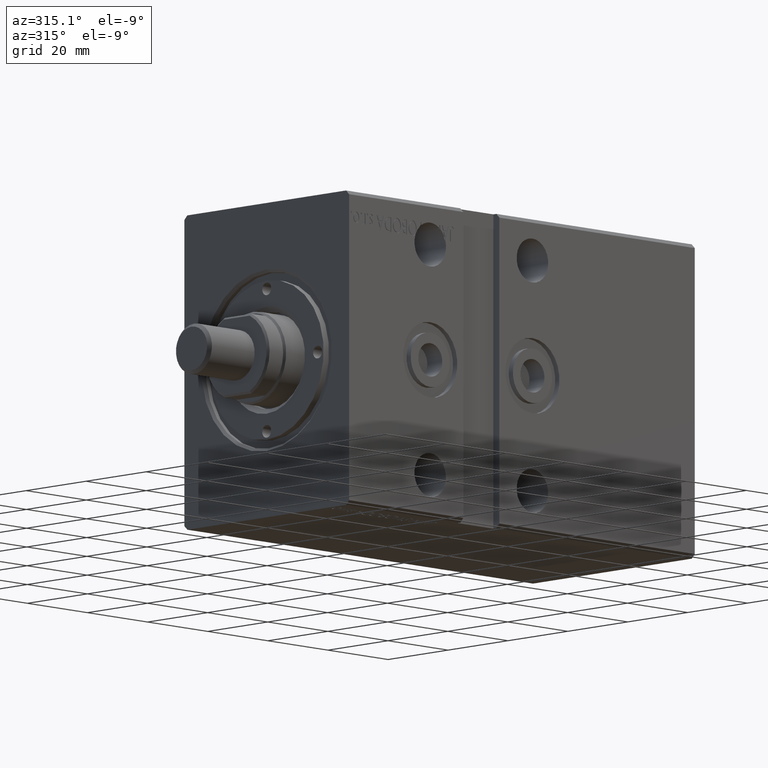
[diagram: clean part render]
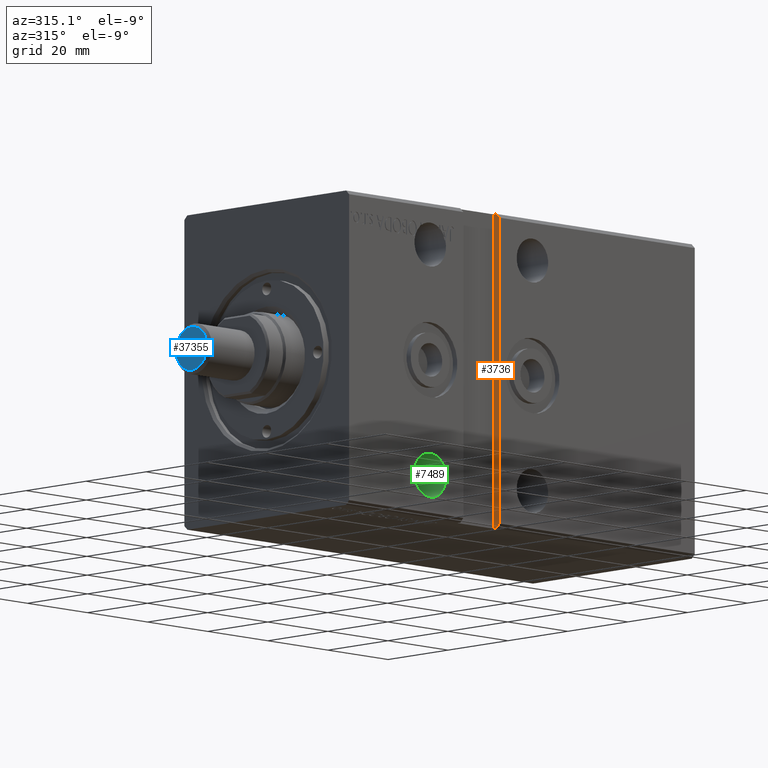
[diagram: same view with three faces highlighted in distinct colors, each labeled with its STEP entity id]
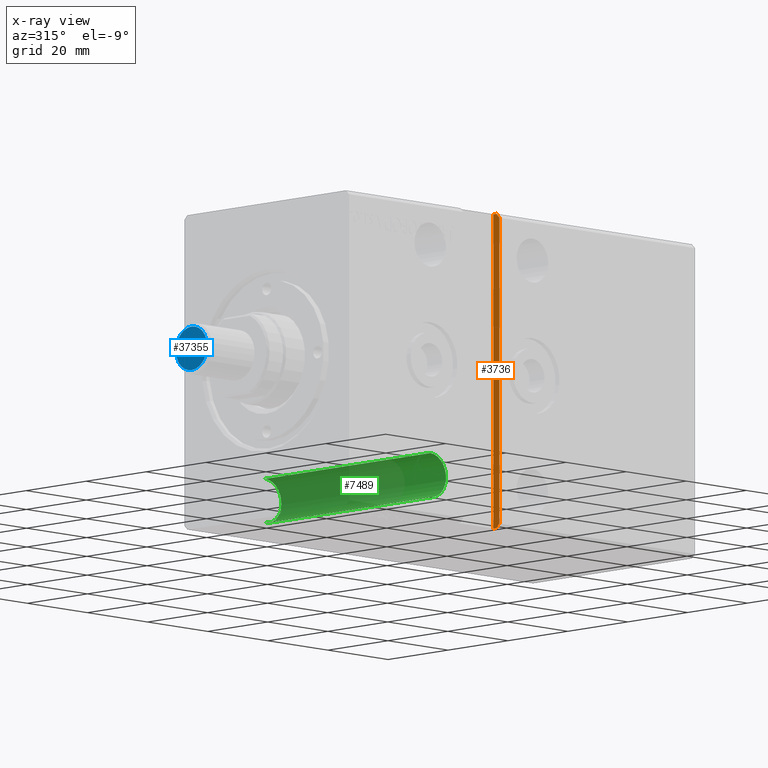
[diagram: x-ray of the same camera — body ghosted, the three highlighted faces saturated]
A machine part, auxiliary view with three faces highlighted in distinct colors.
The next image is the same camera in x-ray (body ghosted, the three faces saturated) — at least one of them is partly hidden behind the body in this view.
Their STEP definitions:

[orange] entity #3736 — the highlighted planar face has unit normal (1, -0, 0).
#1739 = CARTESIAN_POINT ( 'NONE',  ( 49.99999999999999289, -25.50000000000000711, 37.50000000000000711 ) ) ;
#2586 = DIRECTION ( 'NONE',  ( 1.308410382236483948E-16, 0.7071067811865450192, -0.7071067811865500152 ) ) ;
#2839 = VERTEX_POINT ( 'NONE', #11039 ) ;
#2875 = EDGE_CURVE ( 'NONE', #24839, #41887, #14651, .T. ) ;
#3110 = DIRECTION ( 'NONE',  ( -0.000000000000000000, -1.000000000000000000, -5.507058653894625237E-17 ) ) ;
#3736 = ADVANCED_FACE ( 'NONE', ( #24003 ), #14447, .F. ) ;
#4490 = DIRECTION ( 'NONE',  ( 1.000000000000000000, -1.019010552585838968E-32, 1.850371707708594316E-16 ) ) ;
#4881 = AXIS2_PLACEMENT_3D ( 'NONE', #27629, #4490, #7868 ) ;
#4938 = VECTOR ( 'NONE', #30316, 1000.000000000000000 ) ;
#5103 = CARTESIAN_POINT ( 'NONE',  ( 49.99999999999999289, -25.50000000000000711, 37.50000000000000711 ) ) ;
#5427 = ORIENTED_EDGE ( 'NONE', *, *, #19734, .F. ) ;
#5999 = EDGE_CURVE ( 'NONE', #12623, #19579, #16936, .T. ) ;
#6079 = CARTESIAN_POINT ( 'NONE',  ( 50.00000000000000711, -25.50000000000000355, -37.49999999999999289 ) ) ;
#6163 = CARTESIAN_POINT ( 'NONE',  ( 50.00000000000001421, -27.49999999999999645, -36.49999999999999289 ) ) ;
#6202 = VECTOR ( 'NONE', #20369, 1000.000000000000000 ) ;
#6373 = LINE ( 'NONE', #6163, #34116 ) ;
#7868 = DIRECTION ( 'NONE',  ( 1.850371707708594316E-16, 0.000000000000000000, -1.000000000000000000 ) ) ;
#7913 = ORIENTED_EDGE ( 'NONE', *, *, #2875, .F. ) ;
#8742 = VECTOR ( 'NONE', #21035, 1000.000000000000000 ) ;
#10596 = ORIENTED_EDGE ( 'NONE', *, *, #12429, .F. ) ;
#10629 = LINE ( 'NONE', #33361, #8742 ) ;
#11039 = CARTESIAN_POINT ( 'NONE',  ( 50.00000000000000711, -26.50000000000000355, -37.49999999999999289 ) ) ;
#12429 = EDGE_CURVE ( 'NONE', #26502, #24839, #10629, .T. ) ;
#12554 = CARTESIAN_POINT ( 'NONE',  ( 49.99999999999999289, -26.50000000000000711, 37.50000000000000711 ) ) ;
#12623 = VERTEX_POINT ( 'NONE', #38634 ) ;
#14447 = PLANE ( 'NONE',  #4881 ) ;
#14651 = LINE ( 'NONE', #1739, #6202 ) ;
#15820 = VECTOR ( 'NONE', #3110, 1000.000000000000000 ) ;
#16936 = LINE ( 'NONE', #23513, #4938 ) ;
#19579 = VERTEX_POINT ( 'NONE', #30934 ) ;
#19712 = EDGE_LOOP ( 'NONE', ( #7913, #10596, #21120, #22264, #39350, #5427 ) ) ;
#19734 = EDGE_CURVE ( 'NONE', #41887, #19579, #40905, .T. ) ;
#20369 = DIRECTION ( 'NONE',  ( -0.000000000000000000, -1.000000000000000000, -5.507058653894625237E-17 ) ) ;
#20463 = VECTOR ( 'NONE', #21777, 1000.000000000000114 ) ;
#21035 = DIRECTION ( 'NONE',  ( -1.850371707708594316E-16, -9.251858538542971581E-17, 1.000000000000000000 ) ) ;
#21120 = ORIENTED_EDGE ( 'NONE', *, *, #23239, .T. ) ;
#21777 = DIRECTION ( 'NONE',  ( 1.308410382236479018E-16, -0.7071067811865474617, -0.7071067811865474617 ) ) ;
#22264 = ORIENTED_EDGE ( 'NONE', *, *, #22288, .F. ) ;
#22288 = EDGE_CURVE ( 'NONE', #12623, #2839, #6373, .T. ) ;
#23239 = EDGE_CURVE ( 'NONE', #26502, #2839, #35368, .T. ) ;
#23513 = CARTESIAN_POINT ( 'NONE',  ( 49.99999999999999289, -27.50000000000000711, 37.50000000000000711 ) ) ;
#24003 = FACE_OUTER_BOUND ( 'NONE', #19712, .T. ) ;
#24839 = VERTEX_POINT ( 'NONE', #5103 ) ;
#26154 = CARTESIAN_POINT ( 'NONE',  ( 50.00000000000000711, -25.50000000000000355, -37.49999999999999289 ) ) ;
#26502 = VERTEX_POINT ( 'NONE', #26154 ) ;
#27629 = CARTESIAN_POINT ( 'NONE',  ( 49.99999999999999289, -25.50000000000000711, 37.50000000000000711 ) ) ;
#30316 = DIRECTION ( 'NONE',  ( -1.850371707708594316E-16, -9.251858538542971581E-17, 1.000000000000000000 ) ) ;
#30934 = CARTESIAN_POINT ( 'NONE',  ( 49.99999999999999289, -27.50000000000000711, 36.50000000000000711 ) ) ;
#31563 = CARTESIAN_POINT ( 'NONE',  ( 50.00000000000000000, -26.50000000000001421, 37.50000000000000000 ) ) ;
#33361 = CARTESIAN_POINT ( 'NONE',  ( 49.99999999999999289, -25.50000000000000711, 37.50000000000000711 ) ) ;
#34116 = VECTOR ( 'NONE', #2586, 1000.000000000000000 ) ;
#35368 = LINE ( 'NONE', #6079, #15820 ) ;
#38634 = CARTESIAN_POINT ( 'NONE',  ( 50.00000000000000711, -27.50000000000000000, -36.49999999999997868 ) ) ;
#39350 = ORIENTED_EDGE ( 'NONE', *, *, #5999, .T. ) ;
#40905 = LINE ( 'NONE', #31563, #20463 ) ;
#41887 = VERTEX_POINT ( 'NONE', #12554 ) ;

[blue] entity #37355 — the highlighted planar face has unit normal (1, -0, -0).
#140 = DIRECTION ( 'NONE',  ( 1.000000000000000000, 0.000000000000000000, 0.000000000000000000 ) ) ;
#204 = CARTESIAN_POINT ( 'NONE',  ( 0.000000000000000000, 0.000000000000000000, -15.00000000000000000 ) ) ;
#953 = CIRCLE ( 'NONE', #9123, 5.199999999999991296 ) ;
#7000 = PLANE ( 'NONE',  #31015 ) ;
#7205 = DIRECTION ( 'NONE',  ( 1.000000000000000000, 0.000000000000000000, -0.000000000000000000 ) ) ;
#9032 = AXIS2_PLACEMENT_3D ( 'NONE', #26210, #25591, #140 ) ;
#9123 = AXIS2_PLACEMENT_3D ( 'NONE', #204, #12492, #41383 ) ;
#10806 = CARTESIAN_POINT ( 'NONE',  ( 0.000000000000000000, 0.000000000000000000, -15.00000000000000000 ) ) ;
#12492 = DIRECTION ( 'NONE',  ( -0.000000000000000000, -0.000000000000000000, -1.000000000000000000 ) ) ;
#14808 = VERTEX_POINT ( 'NONE', #18861 ) ;
#15163 = ORIENTED_EDGE ( 'NONE', *, *, #23294, .T. ) ;
#18861 = CARTESIAN_POINT ( 'NONE',  ( -5.199999999999991296, 6.858022075225172635E-16, -15.00000000000000000 ) ) ;
#21957 = VERTEX_POINT ( 'NONE', #41514 ) ;
#23294 = EDGE_CURVE ( 'NONE', #21957, #14808, #31449, .T. ) ;
#23752 = DIRECTION ( 'NONE',  ( 0.000000000000000000, 0.000000000000000000, 1.000000000000000000 ) ) ;
#24896 = EDGE_CURVE ( 'NONE', #14808, #21957, #953, .T. ) ;
#25591 = DIRECTION ( 'NONE',  ( -0.000000000000000000, -0.000000000000000000, -1.000000000000000000 ) ) ;
#26210 = CARTESIAN_POINT ( 'NONE',  ( 0.000000000000000000, 0.000000000000000000, -15.00000000000000000 ) ) ;
#29583 = ORIENTED_EDGE ( 'NONE', *, *, #24896, .T. ) ;
#31015 = AXIS2_PLACEMENT_3D ( 'NONE', #10806, #23752, #7205 ) ;
#31449 = CIRCLE ( 'NONE', #9032, 5.199999999999991296 ) ;
#37355 = ADVANCED_FACE ( 'NONE', ( #39266 ), #7000, .F. ) ;
#38049 = EDGE_LOOP ( 'NONE', ( #15163, #29583 ) ) ;
#39266 = FACE_OUTER_BOUND ( 'NONE', #38049, .T. ) ;
#41383 = DIRECTION ( 'NONE',  ( 1.000000000000000000, 0.000000000000000000, 0.000000000000000000 ) ) ;
#41514 = CARTESIAN_POINT ( 'NONE',  ( 5.199999999999991296, 0.000000000000000000, -15.00000000000000000 ) ) ;

[green] entity #7489 — the highlighted cylindrical surface (edge-blend (fillet) strip) has radius 5.25 mm, axis along (-0, -1, -0).
#1261 = ORIENTED_EDGE ( 'NONE', *, *, #6278, .T. ) ;
#1290 = VECTOR ( 'NONE', #28769, 1000.000000000000000 ) ;
#1723 = ORIENTED_EDGE ( 'NONE', *, *, #29907, .T. ) ;
#2262 = VERTEX_POINT ( 'NONE', #21954 ) ;
#2760 = CYLINDRICAL_SURFACE ( 'NONE', #41576, 5.249999999999997335 ) ;
#2860 = DIRECTION ( 'NONE',  ( -0.000000000000000000, 1.000000000000000000, 5.507058653894625853E-17 ) ) ;
#3051 = CARTESIAN_POINT ( 'NONE',  ( 27.00000000000000355, 27.50000000000003197, -32.75000000000000000 ) ) ;
#3120 = DIRECTION ( 'NONE',  ( -0.000000000000000000, 1.000000000000000000, 5.507058653894625853E-17 ) ) ;
#3858 = EDGE_CURVE ( 'NONE', #38270, #11620, #28465, .T. ) ;
#4547 = DIRECTION ( 'NONE',  ( -0.000000000000000000, -1.000000000000000000, -5.507058653894626469E-17 ) ) ;
#4735 = VERTEX_POINT ( 'NONE', #15733 ) ;
#5232 = AXIS2_PLACEMENT_3D ( 'NONE', #38499, #2860, #28955 ) ;
#5593 = EDGE_LOOP ( 'NONE', ( #31413, #16795, #35401, #40978, #18041, #14648, #10989, #37493, #26560, #23864, #1723, #1261 ) ) ;
#6278 = EDGE_CURVE ( 'NONE', #34563, #20643, #34791, .T. ) ;
#6462 = AXIS2_PLACEMENT_3D ( 'NONE', #26368, #7248, #7042 ) ;
#6496 = CARTESIAN_POINT ( 'NONE',  ( 27.00000000000000355, 27.50000000000003197, -27.50000000000000355 ) ) ;
#6880 = CARTESIAN_POINT ( 'NONE',  ( 27.00000000000000355, 27.50000000000003197, -22.25000000000000711 ) ) ;
#7042 = DIRECTION ( 'NONE',  ( 0.000000000000000000, 0.000000000000000000, 1.000000000000000000 ) ) ;
#7248 = DIRECTION ( 'NONE',  ( -0.000000000000000000, 1.000000000000000000, 5.507058653894625853E-17 ) ) ;
#7489 = ADVANCED_FACE ( 'NONE', ( #34601 ), #2760, .F. ) ;
#7886 = EDGE_CURVE ( 'NONE', #13336, #35328, #9037, .T. ) ;
#9037 = CIRCLE ( 'NONE', #22574, 5.249999999999997335 ) ;
#10473 = LINE ( 'NONE', #6880, #33546 ) ;
#10989 = ORIENTED_EDGE ( 'NONE', *, *, #24789, .F. ) ;
#11240 = DIRECTION ( 'NONE',  ( 0.000000000000000000, 1.000000000000000000, 5.507058653894626469E-17 ) ) ;
#11620 = VERTEX_POINT ( 'NONE', #38180 ) ;
#11992 = LINE ( 'NONE', #15803, #1290 ) ;
#12073 = DIRECTION ( 'NONE',  ( 0.000000000000000000, 0.000000000000000000, -1.000000000000000000 ) ) ;
#12102 = DIRECTION ( 'NONE',  ( 0.000000000000000000, 1.000000000000000000, 5.507058653894626469E-17 ) ) ;
#13336 = VERTEX_POINT ( 'NONE', #21675 ) ;
#13470 = DIRECTION ( 'NONE',  ( 0.000000000000000000, 0.000000000000000000, 1.000000000000000000 ) ) ;
#14117 = DIRECTION ( 'NONE',  ( 0.000000000000000000, -1.000000000000000000, -4.752667057470705491E-17 ) ) ;
#14648 = ORIENTED_EDGE ( 'NONE', *, *, #7886, .T. ) ;
#15733 = CARTESIAN_POINT ( 'NONE',  ( 27.00000000000000355, 27.50000000000003197, -22.25000000000000711 ) ) ;
#15803 = CARTESIAN_POINT ( 'NONE',  ( 31.64571472946488129, 27.50000000000003197, -29.94537004406961955 ) ) ;
#16642 = DIRECTION ( 'NONE',  ( -0.000000000000000000, -1.000000000000000000, -5.507058653894626469E-17 ) ) ;
#16795 = ORIENTED_EDGE ( 'NONE', *, *, #36821, .T. ) ;
#17046 = LINE ( 'NONE', #23843, #30828 ) ;
#17187 = EDGE_CURVE ( 'NONE', #38270, #30853, #18394, .T. ) ;
#17872 = CIRCLE ( 'NONE', #26693, 5.249999999999997335 ) ;
#18041 = ORIENTED_EDGE ( 'NONE', *, *, #41268, .F. ) ;
#18394 = CIRCLE ( 'NONE', #33995, 5.249999999999997335 ) ;
#18654 = CARTESIAN_POINT ( 'NONE',  ( 27.00000000000000355, 27.50000000000003197, -27.50000000000000355 ) ) ;
#18824 = VERTEX_POINT ( 'NONE', #25635 ) ;
#19981 = CARTESIAN_POINT ( 'NONE',  ( 30.28846153846154010, 27.50000000000003197, -31.59249565791574099 ) ) ;
#20643 = VERTEX_POINT ( 'NONE', #39130 ) ;
#21220 = DIRECTION ( 'NONE',  ( -0.000000000000000000, 1.000000000000000000, -0.000000000000000000 ) ) ;
#21675 = CARTESIAN_POINT ( 'NONE',  ( 31.64571472946487418, 27.50000000000003197, -29.94537004406963376 ) ) ;
#21815 = CARTESIAN_POINT ( 'NONE',  ( 27.00000000000000355, -27.50000000000000355, -32.75000000000000000 ) ) ;
#21837 = CARTESIAN_POINT ( 'NONE',  ( 30.28846153846154010, 27.50000000000003197, -31.59249565791573389 ) ) ;
#21954 = CARTESIAN_POINT ( 'NONE',  ( 30.01923076923077005, 27.50000000000003197, -31.79496746927496531 ) ) ;
#22574 = AXIS2_PLACEMENT_3D ( 'NONE', #6496, #3120, #13470 ) ;
#22750 = CARTESIAN_POINT ( 'NONE',  ( 30.28846153846154010, 27.30000000000000782, -31.59249565791573389 ) ) ;
#23498 = CIRCLE ( 'NONE', #5232, 5.249999999999997335 ) ;
#23843 = CARTESIAN_POINT ( 'NONE',  ( 27.00000000000000355, 27.50000000000003197, -32.75000000000000000 ) ) ;
#23864 = ORIENTED_EDGE ( 'NONE', *, *, #31195, .T. ) ;
#24789 = EDGE_CURVE ( 'NONE', #33203, #35328, #33973, .T. ) ;
#24833 = EDGE_CURVE ( 'NONE', #33203, #18824, #17872, .T. ) ;
#25233 = DIRECTION ( 'NONE',  ( -0.000000000000000000, -1.000000000000000000, -5.507058653894626469E-17 ) ) ;
#25338 = VECTOR ( 'NONE', #11240, 1000.000000000000000 ) ;
#25365 = DIRECTION ( 'NONE',  ( 0.000000000000000000, 1.000000000000000000, -0.000000000000000000 ) ) ;
#25635 = CARTESIAN_POINT ( 'NONE',  ( 30.01923076923077005, 27.30000000000000782, -31.79496746927496531 ) ) ;
#26114 = CIRCLE ( 'NONE', #6462, 5.249999999999997335 ) ;
#26368 = CARTESIAN_POINT ( 'NONE',  ( 27.00000000000000355, 27.50000000000003197, -27.50000000000000355 ) ) ;
#26463 = CARTESIAN_POINT ( 'NONE',  ( 31.64571472946487418, 27.30000000000000782, -29.94537004406963732 ) ) ;
#26560 = ORIENTED_EDGE ( 'NONE', *, *, #30661, .F. ) ;
#26693 = AXIS2_PLACEMENT_3D ( 'NONE', #37362, #21220, #34184 ) ;
#27794 = LINE ( 'NONE', #37133, #28803 ) ;
#28465 = LINE ( 'NONE', #41203, #29297 ) ;
#28769 = DIRECTION ( 'NONE',  ( -0.000000000000000000, -1.000000000000000000, -5.507058653894626469E-17 ) ) ;
#28803 = VECTOR ( 'NONE', #36919, 1000.000000000000000 ) ;
#28955 = DIRECTION ( 'NONE',  ( 0.000000000000000000, 0.000000000000000000, 1.000000000000000000 ) ) ;
#29297 = VECTOR ( 'NONE', #12102, 1000.000000000000000 ) ;
#29907 = EDGE_CURVE ( 'NONE', #33093, #34563, #17046, .T. ) ;
#29912 = EDGE_CURVE ( 'NONE', #4735, #20643, #10473, .T. ) ;
#30661 = EDGE_CURVE ( 'NONE', #2262, #18824, #27794, .T. ) ;
#30828 = VECTOR ( 'NONE', #4547, 1000.000000000000000 ) ;
#30853 = VERTEX_POINT ( 'NONE', #26463 ) ;
#31195 = EDGE_CURVE ( 'NONE', #2262, #33093, #26114, .T. ) ;
#31413 = ORIENTED_EDGE ( 'NONE', *, *, #29912, .F. ) ;
#33093 = VERTEX_POINT ( 'NONE', #3051 ) ;
#33203 = VERTEX_POINT ( 'NONE', #22750 ) ;
#33451 = DIRECTION ( 'NONE',  ( 0.000000000000000000, 0.000000000000000000, 1.000000000000000000 ) ) ;
#33546 = VECTOR ( 'NONE', #16642, 1000.000000000000000 ) ;
#33973 = LINE ( 'NONE', #21837, #25338 ) ;
#33995 = AXIS2_PLACEMENT_3D ( 'NONE', #41510, #25365, #41726 ) ;
#34184 = DIRECTION ( 'NONE',  ( -2.907726969256363870E-14, 0.000000000000000000, -1.000000000000000000 ) ) ;
#34563 = VERTEX_POINT ( 'NONE', #21815 ) ;
#34601 = FACE_OUTER_BOUND ( 'NONE', #5593, .T. ) ;
#34791 = CIRCLE ( 'NONE', #36099, 5.249999999999997335 ) ;
#35328 = VERTEX_POINT ( 'NONE', #19981 ) ;
#35401 = ORIENTED_EDGE ( 'NONE', *, *, #3858, .F. ) ;
#36008 = CARTESIAN_POINT ( 'NONE',  ( 27.00000000000000355, -27.50000000000000355, -27.50000000000000711 ) ) ;
#36099 = AXIS2_PLACEMENT_3D ( 'NONE', #36008, #14117, #33451 ) ;
#36821 = EDGE_CURVE ( 'NONE', #4735, #11620, #23498, .T. ) ;
#36919 = DIRECTION ( 'NONE',  ( -0.000000000000000000, -1.000000000000000000, -5.507058653894626469E-17 ) ) ;
#37133 = CARTESIAN_POINT ( 'NONE',  ( 30.01923076923077005, 27.50000000000003197, -31.79496746927495821 ) ) ;
#37362 = CARTESIAN_POINT ( 'NONE',  ( 27.00000000000000355, 27.30000000000000782, -27.50000000000000355 ) ) ;
#37493 = ORIENTED_EDGE ( 'NONE', *, *, #24833, .T. ) ;
#38180 = CARTESIAN_POINT ( 'NONE',  ( 32.01284735985532137, 27.50000000000003197, -29.06008376274852267 ) ) ;
#38270 = VERTEX_POINT ( 'NONE', #38402 ) ;
#38402 = CARTESIAN_POINT ( 'NONE',  ( 32.01284735985532137, 27.30000000000000782, -29.06008376274852267 ) ) ;
#38499 = CARTESIAN_POINT ( 'NONE',  ( 27.00000000000000355, 27.50000000000003197, -27.50000000000000355 ) ) ;
#39130 = CARTESIAN_POINT ( 'NONE',  ( 27.00000000000000355, -27.50000000000000355, -22.25000000000001066 ) ) ;
#40978 = ORIENTED_EDGE ( 'NONE', *, *, #17187, .T. ) ;
#41203 = CARTESIAN_POINT ( 'NONE',  ( 32.01284735985531427, 27.50000000000003197, -29.06008376274851912 ) ) ;
#41268 = EDGE_CURVE ( 'NONE', #13336, #30853, #11992, .T. ) ;
#41510 = CARTESIAN_POINT ( 'NONE',  ( 27.00000000000000355, 27.30000000000000782, -27.50000000000000355 ) ) ;
#41576 = AXIS2_PLACEMENT_3D ( 'NONE', #18654, #25233, #12073 ) ;
#41726 = DIRECTION ( 'NONE',  ( -5.947623346206198682E-15, 0.000000000000000000, -1.000000000000000000 ) ) ;